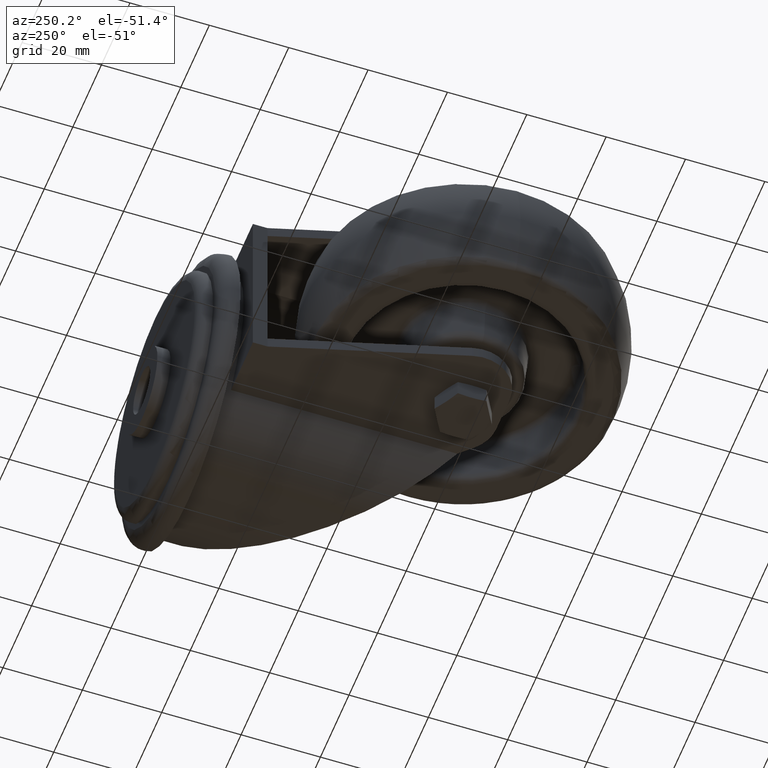
[diagram: clean part render]
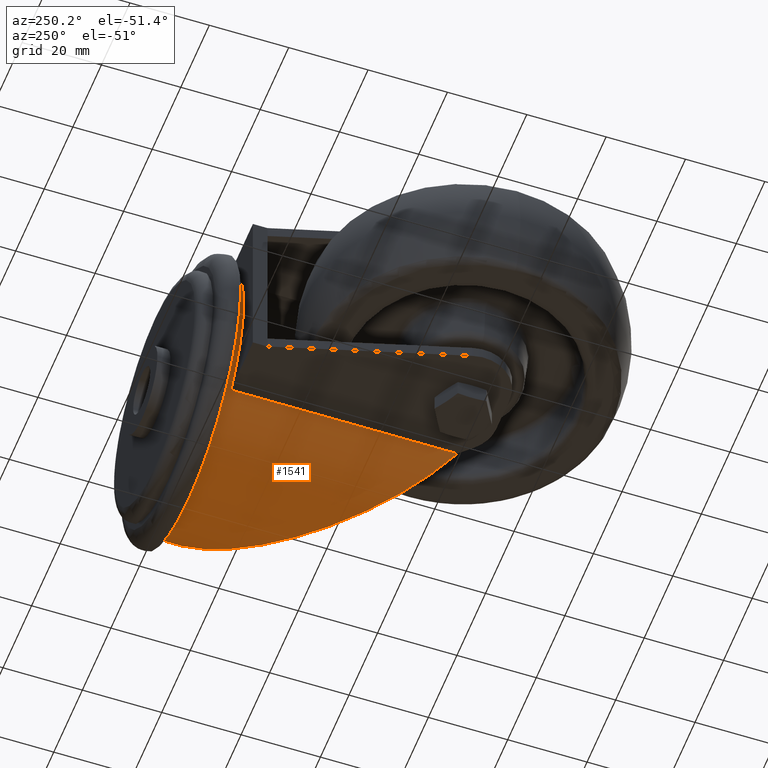
[diagram: same view with one face highlighted and labeled with its STEP entity id]
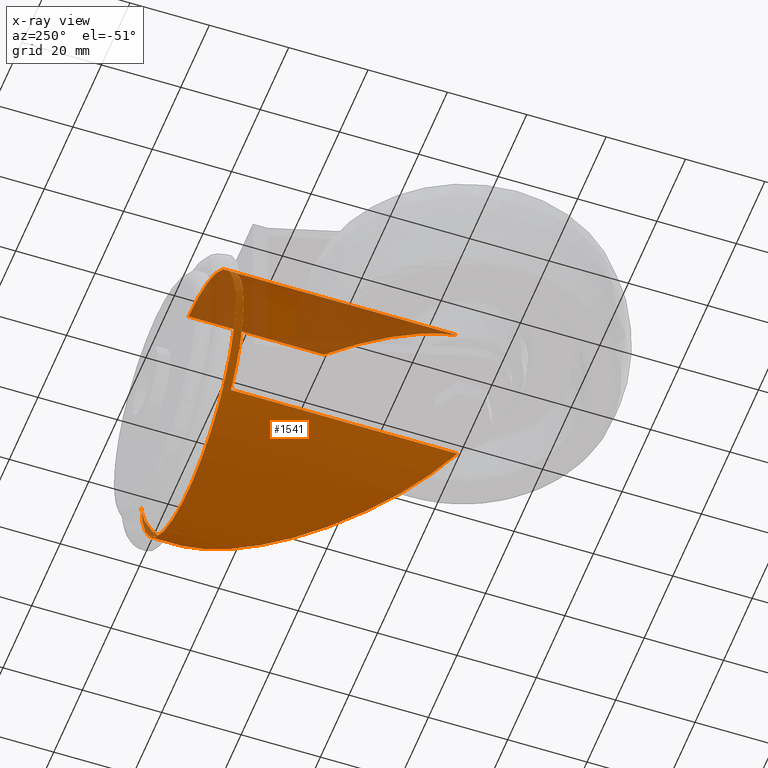
[diagram: x-ray of the same camera — body ghosted, the highlighted face saturated]
A machine part, auxiliary view. The second image highlights one B-rep face of the part: STEP entity #1541.
The next image is the same camera in x-ray: the body ghosted, the highlighted face saturated — about 22% of this face is hidden behind the body in this view.
In plain terms, the highlighted cylindrical surface (partial cylindrical patch) has radius 33 mm, axis along (0, -1, 0).
Its self-contained STEP definition (entity closure, byte-faithful):
#222=FACE_OUTER_BOUND('',#328,.T.);
#328=EDGE_LOOP('',(#1110,#1111,#1112,#1113,#1114,#1115,#1116));
#454=CIRCLE('',#1775,33.);
#455=CIRCLE('',#1776,33.);
#552=ELLIPSE('',#1759,47.4676159234785,33.);
#553=ELLIPSE('',#1760,47.4676159234785,33.);
#554=LINE('',#2490,#622);
#580=LINE('',#2574,#648);
#581=LINE('',#2577,#649);
#622=VECTOR('',#1975,33.);
#648=VECTOR('',#2057,1000.);
#649=VECTOR('',#2060,1000.);
#690=VERTEX_POINT('',#2488);
#691=VERTEX_POINT('',#2489);
#692=VERTEX_POINT('',#2491);
#704=VERTEX_POINT('',#2520);
#705=VERTEX_POINT('',#2523);
#721=VERTEX_POINT('',#2573);
#722=VERTEX_POINT('',#2575);
#829=EDGE_CURVE('',#690,#691,#554,.T.);
#845=EDGE_CURVE('',#704,#692,#552,.T.);
#846=EDGE_CURVE('',#690,#705,#553,.T.);
#871=EDGE_CURVE('',#691,#692,#454,.F.);
#872=EDGE_CURVE('',#721,#704,#580,.T.);
#873=EDGE_CURVE('',#722,#721,#455,.T.);
#874=EDGE_CURVE('',#722,#705,#581,.T.);
#1110=ORIENTED_EDGE('',*,*,#829,.T.);
#1111=ORIENTED_EDGE('',*,*,#871,.T.);
#1112=ORIENTED_EDGE('',*,*,#845,.F.);
#1113=ORIENTED_EDGE('',*,*,#872,.F.);
#1114=ORIENTED_EDGE('',*,*,#873,.F.);
#1115=ORIENTED_EDGE('',*,*,#874,.T.);
#1116=ORIENTED_EDGE('',*,*,#846,.F.);
#1516=CYLINDRICAL_SURFACE('',#1774,33.);
#1541=ADVANCED_FACE('',(#222),#1516,.T.);
#1759=AXIS2_PLACEMENT_3D('',#2522,#2005,#2006);
#1760=AXIS2_PLACEMENT_3D('',#2524,#2007,#2008);
#1774=AXIS2_PLACEMENT_3D('',#2571,#2053,#2054);
#1775=AXIS2_PLACEMENT_3D('',#2572,#2055,#2056);
#1776=AXIS2_PLACEMENT_3D('',#2576,#2058,#2059);
#1975=DIRECTION('',(0.,1.,0.));
#2005=DIRECTION('center_axis',(0.718805899606343,-0.695210816005559,0.));
#2006=DIRECTION('ref_axis',(-0.695210816005559,-0.718805899606343,0.));
#2007=DIRECTION('center_axis',(0.718805899606343,-0.695210816005559,0.));
#2008=DIRECTION('ref_axis',(-0.695210816005559,-0.718805899606343,0.));
#2053=DIRECTION('center_axis',(0.,-1.,0.));
#2054=DIRECTION('ref_axis',(0.,0.,-1.));
#2055=DIRECTION('center_axis',(0.,1.,0.));
#2056=DIRECTION('ref_axis',(0.,0.,1.));
#2057=DIRECTION('',(0.,-1.,0.));
#2058=DIRECTION('center_axis',(0.,-1.,0.));
#2059=DIRECTION('ref_axis',(0.,0.,-1.));
#2060=DIRECTION('',(0.,-1.,0.));
#2488=CARTESIAN_POINT('',(39.,21.0799976339556,33.));
#2489=CARTESIAN_POINT('',(39.,55.2,33.));
#2490=CARTESIAN_POINT('',(39.,-10.,33.));
#2491=CARTESIAN_POINT('',(72.,55.2,0.));
#2520=CARTESIAN_POINT('',(14.8597845908534,-3.87952378655657,-22.5));
#2522=CARTESIAN_POINT('Origin',(39.,21.0799976339556,0.));
#2523=CARTESIAN_POINT('',(14.8597845908534,-3.87952378655659,22.5));
#2524=CARTESIAN_POINT('Origin',(39.,21.0799976339556,0.));
#2571=CARTESIAN_POINT('Origin',(39.,-10.,0.));
#2572=CARTESIAN_POINT('Origin',(39.,55.2,0.));
#2573=CARTESIAN_POINT('',(14.8597845908534,53.2,-22.5));
#2574=CARTESIAN_POINT('',(14.8597845908534,-10.,-22.5));
#2575=CARTESIAN_POINT('',(14.8597845908534,53.2,22.5));
#2576=CARTESIAN_POINT('Origin',(39.,53.2,0.));
#2577=CARTESIAN_POINT('',(14.8597845908534,-10.,22.5));